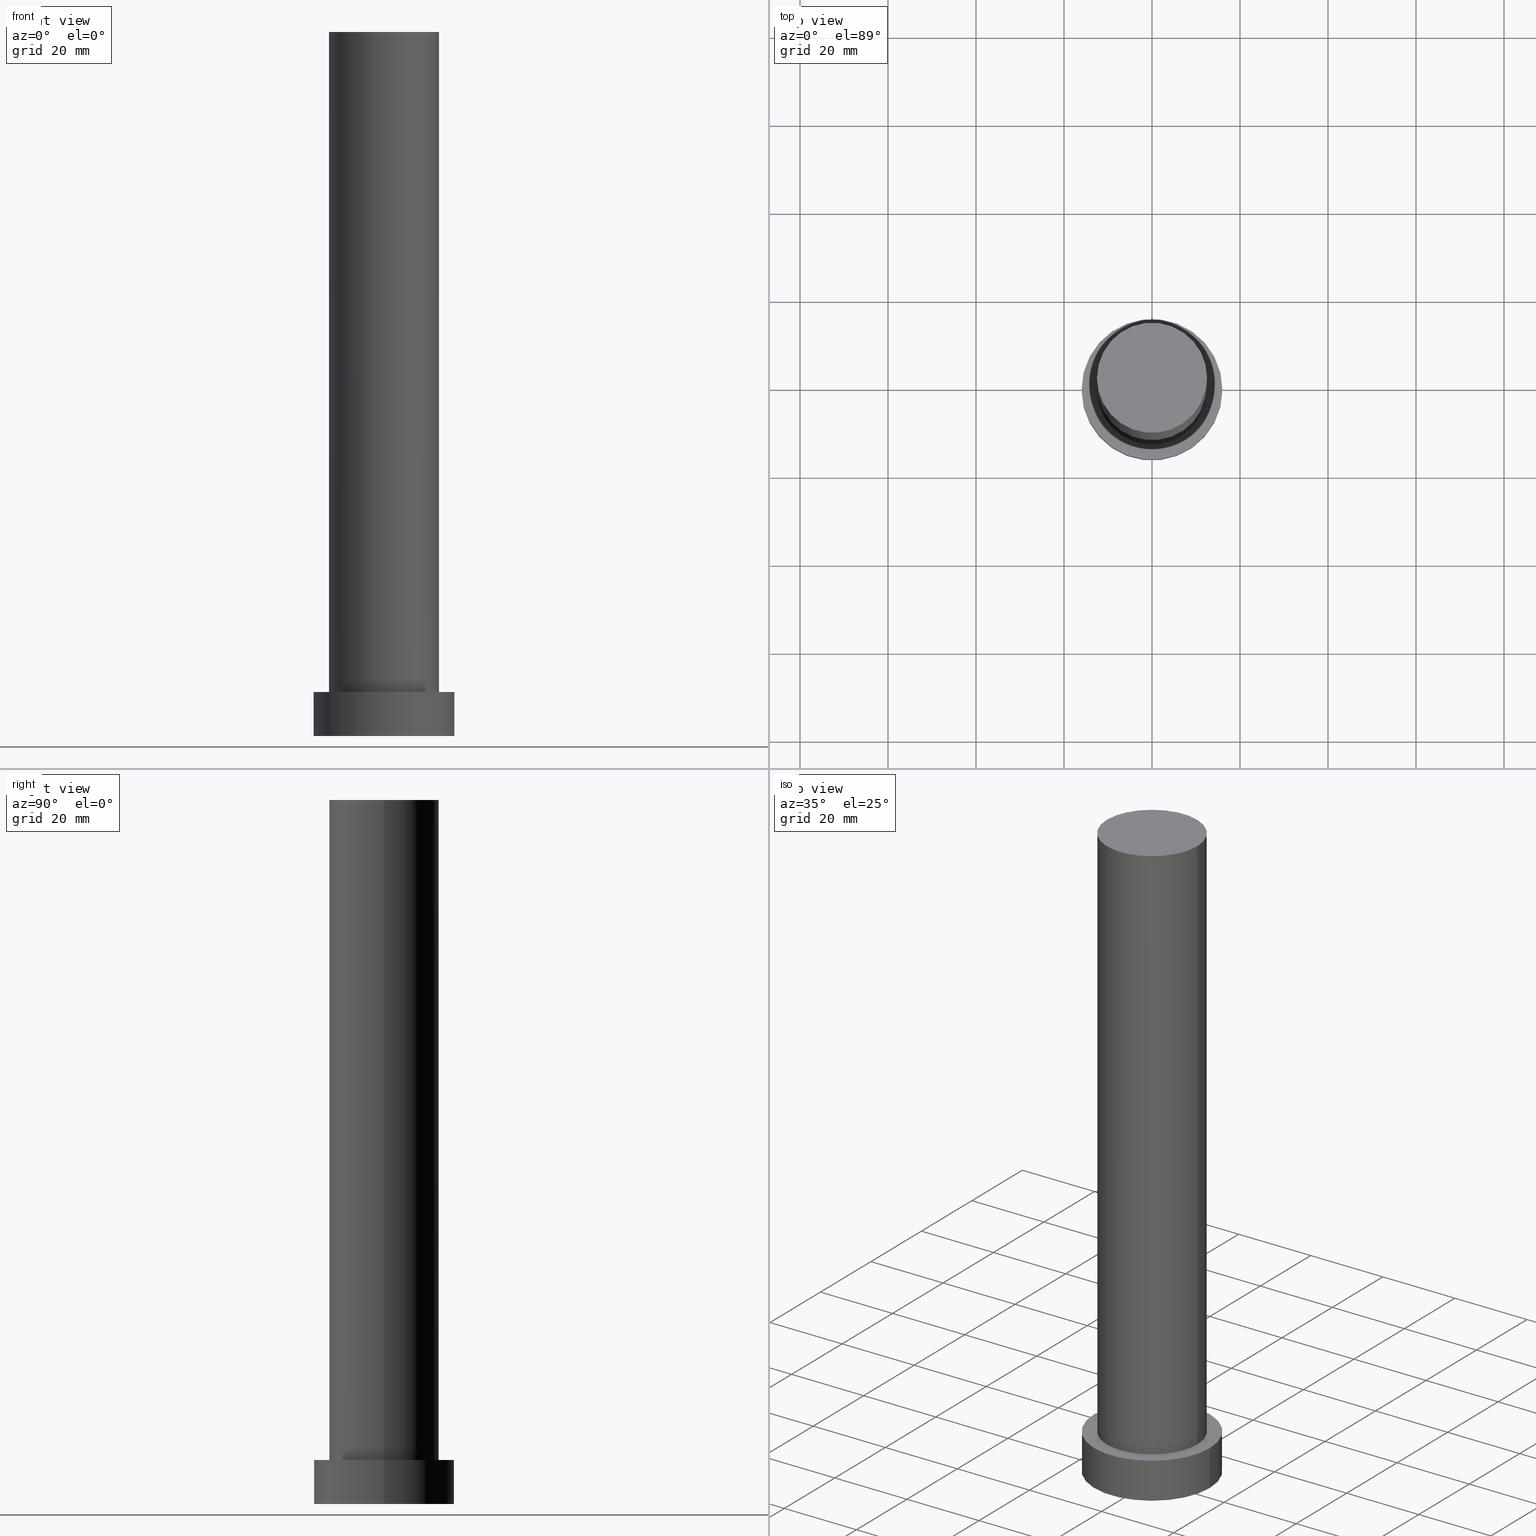
[diagram: canonical four-view strip — front | top / right | iso, engineering-drawing reading convention]
A machine part, canonical four-view strip (front | top / right | iso — engineering-drawing reading convention). The complete STEP part file that produces these views, byte-faithful:
ISO-10303-21;
HEADER;
FILE_DESCRIPTION (( 'STEP AP203' ),
    '1' );
FILE_NAME ('25d0.STEP',
    '2026-02-06T12:35:11',
    ( '' ),
    ( '' ),
    'SwSTEP 2.0',
    'SolidWorks 2019',
    '' );
FILE_SCHEMA (( 'CONFIG_CONTROL_DESIGN' ));
ENDSEC;

DATA;
#1 = APPROVAL_PERSON_ORGANIZATION ( #12, #62, #167 ) ;
#2 = DIRECTION ( 'NONE',  ( 1.000000000000000000, 0.000000000000000000, -0.000000000000000000 ) ) ;
#3 = LINE ( 'NONE', #46, #191 ) ;
#4 = AXIS2_PLACEMENT_3D ( 'NONE', #246, #28, #69 ) ;
#5 = FACE_OUTER_BOUND ( 'NONE', #105, .T. ) ;
#6 = CYLINDRICAL_SURFACE ( 'NONE', #98, 12.50000000000000000 ) ;
#7 = AXIS2_PLACEMENT_3D ( 'NONE', #66, #45, #203 ) ;
#8 = DIRECTION ( 'NONE',  ( 0.000000000000000000, 0.000000000000000000, 1.000000000000000000 ) ) ;
#9 = EDGE_LOOP ( 'NONE', ( #13, #34, #56, #166 ) ) ;
#10 = ADVANCED_FACE ( 'NONE', ( #111, #232 ), #95, .T. ) ;
#11 = ORIENTED_EDGE ( 'NONE', *, *, #53, .F. ) ;
#12 = PERSON_AND_ORGANIZATION ( #127, #145 ) ;
#13 = ORIENTED_EDGE ( 'NONE', *, *, #17, .F. ) ;
#14 = ORIENTED_EDGE ( 'NONE', *, *, #128, .T. ) ;
#15 = ORIENTED_EDGE ( 'NONE', *, *, #156, .T. ) ;
#16 = AXIS2_PLACEMENT_3D ( 'NONE', #201, #184, #139 ) ;
#17 = EDGE_CURVE ( 'NONE', #49, #212, #213, .T. ) ;
#18 = COORDINATED_UNIVERSAL_TIME_OFFSET ( 1, 0, .AHEAD. ) ;
#19 = PLANE ( 'NONE',  #160 ) ;
#20 = CIRCLE ( 'NONE', #250, 16.00000000000000000 ) ;
#21 = PERSON_AND_ORGANIZATION ( #127, #145 ) ;
#22 = ADVANCED_FACE ( 'NONE', ( #164 ), #80, .T. ) ;
#23 = AXIS2_PLACEMENT_3D ( 'NONE', #170, #79, #57 ) ;
#24 = CARTESIAN_POINT ( 'NONE',  ( -12.50000000000000000, 0.000000000000000000, 10.00000000000000000 ) ) ;
#25 = APPROVAL_STATUS ( 'not_yet_approved' ) ;
#26 = CARTESIAN_POINT ( 'NONE',  ( 16.00000000000000000, 1.959434878635765131E-15, 0.000000000000000000 ) ) ;
#27 = CARTESIAN_POINT ( 'NONE',  ( 0.000000000000000000, 0.000000000000000000, 10.00000000000000000 ) ) ;
#28 = DIRECTION ( 'NONE',  ( 0.000000000000000000, 0.000000000000000000, 1.000000000000000000 ) ) ;
#29 = PERSON_AND_ORGANIZATION ( #127, #145 ) ;
#30 = VERTEX_POINT ( 'NONE', #36 ) ;
#31 = LOCAL_TIME ( 13, 35, 11.00000000000000000, #103 ) ;
#32 = CC_DESIGN_APPROVAL ( #178, ( #43 ) ) ;
#33 = ORIENTED_EDGE ( 'NONE', *, *, #194, .F. ) ;
#34 = ORIENTED_EDGE ( 'NONE', *, *, #128, .F. ) ;
#35 = LOCAL_TIME ( 13, 35, 11.00000000000000000, #180 ) ;
#36 = CARTESIAN_POINT ( 'NONE',  ( -16.00000000000000000, 0.000000000000000000, 10.00000000000000000 ) ) ;
#37 = APPROVAL_ROLE ( '' ) ;
#38 = APPLICATION_CONTEXT ( 'configuration controlled 3d designs of mechanical parts and assemblies' ) ;
#39 = AXIS2_PLACEMENT_3D ( 'NONE', #84, #88, #159 ) ;
#40 = CIRCLE ( 'NONE', #187, 12.50000000000000000 ) ;
#41 = ADVANCED_FACE ( 'NONE', ( #236 ), #19, .T. ) ;
#42 = PERSON_AND_ORGANIZATION ( #127, #145 ) ;
#43 = SECURITY_CLASSIFICATION ( '', '', #255 ) ;
#44 = DIRECTION ( 'NONE',  ( 0.000000000000000000, 0.000000000000000000, 1.000000000000000000 ) ) ;
#45 = DIRECTION ( 'NONE',  ( 0.000000000000000000, 0.000000000000000000, 1.000000000000000000 ) ) ;
#46 = CARTESIAN_POINT ( 'NONE',  ( 16.00000000000000000, 1.959434878635765131E-15, 10.00000000000000000 ) ) ;
#47 = MANIFOLD_SOLID_BREP ( 'P�idat vysunut�m3', #186 ) ;
#48 = DIRECTION ( 'NONE',  ( -0.000000000000000000, -0.000000000000000000, -1.000000000000000000 ) ) ;
#49 = VERTEX_POINT ( 'NONE', #177 ) ;
#50 = APPLICATION_PROTOCOL_DEFINITION ( 'international standard', 'config_control_design', 1994, #242 ) ;
#51 = PERSON_AND_ORGANIZATION_ROLE ( 'design_owner' ) ;
#52 = ORIENTED_EDGE ( 'NONE', *, *, #112, .F. ) ;
#53 = EDGE_CURVE ( 'NONE', #77, #130, #195, .T. ) ;
#54 = AXIS2_PLACEMENT_3D ( 'NONE', #237, #174, #59 ) ;
#55 = AXIS2_PLACEMENT_3D ( 'NONE', #27, #64, #71 ) ;
#56 = ORIENTED_EDGE ( 'NONE', *, *, #53, .T. ) ;
#57 = DIRECTION ( 'NONE',  ( 1.000000000000000000, 0.000000000000000000, -0.000000000000000000 ) ) ;
#58 = ADVANCED_FACE ( 'NONE', ( #96 ), #216, .T. ) ;
#59 = DIRECTION ( 'NONE',  ( -1.000000000000000000, 0.000000000000000000, 0.000000000000000000 ) ) ;
#60 = DIRECTION ( 'NONE',  ( 1.000000000000000000, 0.000000000000000000, -0.000000000000000000 ) ) ;
#61 = DATE_TIME_ROLE ( 'classification_date' ) ;
#62 = APPROVAL ( #25, 'NEUR�EN�' ) ;
#63 = CIRCLE ( 'NONE', #4, 12.50000000000000000 ) ;
#64 = DIRECTION ( 'NONE',  ( 0.000000000000000000, 0.000000000000000000, 1.000000000000000000 ) ) ;
#65 = CC_DESIGN_APPROVAL ( #62, ( #165 ) ) ;
#66 = CARTESIAN_POINT ( 'NONE',  ( 0.000000000000000000, 0.000000000000000000, 10.00000000000000000 ) ) ;
#67 = DATE_AND_TIME ( #241, #31 ) ;
#68 = CARTESIAN_POINT ( 'NONE',  ( -16.00000000000000000, 0.000000000000000000, 0.000000000000000000 ) ) ;
#69 = DIRECTION ( 'NONE',  ( 1.000000000000000000, 0.000000000000000000, 0.000000000000000000 ) ) ;
#70 = UNCERTAINTY_MEASURE_WITH_UNIT (LENGTH_MEASURE( 1.000000000000000082E-05 ), #245, 'distance_accuracy_value', 'NONE');
#71 = DIRECTION ( 'NONE',  ( 1.000000000000000000, 0.000000000000000000, 0.000000000000000000 ) ) ;
#72 = PRODUCT_RELATED_PRODUCT_CATEGORY ( 'detail', '', ( #76 ) ) ;
#73 = ORIENTED_EDGE ( 'NONE', *, *, #233, .T. ) ;
#74 =( NAMED_UNIT ( * ) PLANE_ANGLE_UNIT ( ) SI_UNIT ( $, .RADIAN. ) );
#75 = ORIENTED_EDGE ( 'NONE', *, *, #251, .T. ) ;
#76 = PRODUCT ( '25d0', '25d0', '', ( #226 ) ) ;
#77 = VERTEX_POINT ( 'NONE', #220 ) ;
#78 = PRODUCT_DEFINITION_FORMATION_WITH_SPECIFIED_SOURCE ( 'LIBOVOLN�', '', #76, .NOT_KNOWN. ) ;
#79 = DIRECTION ( 'NONE',  ( 0.000000000000000000, 0.000000000000000000, 1.000000000000000000 ) ) ;
#80 = CYLINDRICAL_SURFACE ( 'NONE', #54, 16.00000000000000000 ) ;
#81 = APPROVAL_PERSON_ORGANIZATION ( #97, #178, #197 ) ;
#82 = COORDINATED_UNIVERSAL_TIME_OFFSET ( 1, 0, .AHEAD. ) ;
#83 = CARTESIAN_POINT ( 'NONE',  ( 16.00000000000000000, 1.959434878635765131E-15, 10.00000000000000000 ) ) ;
#84 = CARTESIAN_POINT ( 'NONE',  ( 0.000000000000000000, 0.000000000000000000, 0.000000000000000000 ) ) ;
#85 = CARTESIAN_POINT ( 'NONE',  ( 0.000000000000000000, 0.000000000000000000, 10.00000000000000000 ) ) ;
#86 = AXIS2_PLACEMENT_3D ( 'NONE', #243, #204, #222 ) ;
#87 = ADVANCED_FACE ( 'NONE', ( #182 ), #121, .T. ) ;
#88 = DIRECTION ( 'NONE',  ( 0.000000000000000000, 0.000000000000000000, 1.000000000000000000 ) ) ;
#89 = DIRECTION ( 'NONE',  ( -0.000000000000000000, -0.000000000000000000, -1.000000000000000000 ) ) ;
#90 = DIRECTION ( 'NONE',  ( -0.000000000000000000, -0.000000000000000000, -1.000000000000000000 ) ) ;
#91 = ORIENTED_EDGE ( 'NONE', *, *, #172, .T. ) ;
#92 = DIRECTION ( 'NONE',  ( 1.000000000000000000, 0.000000000000000000, 0.000000000000000000 ) ) ;
#93 = VERTEX_POINT ( 'NONE', #26 ) ;
#94 = EDGE_LOOP ( 'NONE', ( #247, #146, #193, #109 ) ) ;
#95 = PLANE ( 'NONE',  #23 ) ;
#96 = FACE_OUTER_BOUND ( 'NONE', #228, .T. ) ;
#97 = PERSON_AND_ORGANIZATION ( #127, #145 ) ;
#98 = AXIS2_PLACEMENT_3D ( 'NONE', #188, #90, #149 ) ;
#99 = VECTOR ( 'NONE', #89, 1000.000000000000000 ) ;
#100 = APPROVAL_STATUS ( 'not_yet_approved' ) ;
#101 = DIRECTION ( 'NONE',  ( -0.000000000000000000, -0.000000000000000000, -1.000000000000000000 ) ) ;
#102 = DIRECTION ( 'NONE',  ( 1.000000000000000000, 0.000000000000000000, 0.000000000000000000 ) ) ;
#103 = COORDINATED_UNIVERSAL_TIME_OFFSET ( 1, 0, .AHEAD. ) ;
#104 =( NAMED_UNIT ( * ) SI_UNIT ( $, .STERADIAN. ) SOLID_ANGLE_UNIT ( ) );
#105 = EDGE_LOOP ( 'NONE', ( #131, #33 ) ) ;
#106 = DIRECTION ( 'NONE',  ( 0.000000000000000000, 0.000000000000000000, 1.000000000000000000 ) ) ;
#107 = ADVANCED_FACE ( 'NONE', ( #5 ), #141, .F. ) ;
#108 = ORIENTED_EDGE ( 'NONE', *, *, #205, .F. ) ;
#109 = ORIENTED_EDGE ( 'NONE', *, *, #172, .F. ) ;
#110 = APPROVAL_STATUS ( 'not_yet_approved' ) ;
#111 = FACE_BOUND ( 'NONE', #192, .T. ) ;
#112 = EDGE_CURVE ( 'NONE', #30, #148, #198, .T. ) ;
#113 = CARTESIAN_POINT ( 'NONE',  ( 12.50000000000000000, 1.530808498934191521E-15, 160.0000000000000000 ) ) ;
#114 = APPROVAL_DATE_TIME ( #153, #168 ) ;
#115 = PERSON_AND_ORGANIZATION ( #127, #145 ) ;
#116 = CIRCLE ( 'NONE', #7, 16.00000000000000000 ) ;
#117 = PERSON_AND_ORGANIZATION_ROLE ( 'design_supplier' ) ;
#118 = CC_DESIGN_DATE_AND_TIME_ASSIGNMENT ( #199, #61, ( #43 ) ) ;
#119 = CALENDAR_DATE ( 2026, 6, 2 ) ;
#120 = DIRECTION ( 'NONE',  ( 1.000000000000000000, 0.000000000000000000, 0.000000000000000000 ) ) ;
#121 = CYLINDRICAL_SURFACE ( 'NONE', #16, 16.00000000000000000 ) ;
#122 = PERSON_AND_ORGANIZATION ( #127, #145 ) ;
#123 = DIRECTION ( 'NONE',  ( 0.000000000000000000, 0.000000000000000000, 1.000000000000000000 ) ) ;
#124 = LOCAL_TIME ( 13, 35, 11.00000000000000000, #82 ) ;
#125 = AXIS2_PLACEMENT_3D ( 'NONE', #239, #44, #2 ) ;
#126 = PERSON_AND_ORGANIZATION ( #127, #145 ) ;
#127 = PERSON ( 'NEUR�EN�', 'NEUR�EN�', 'NEUR�EN�', ('NEUR�EN�'), ('NEUR�EN�'), ('NEUR�EN�') ) ;
#128 = EDGE_CURVE ( 'NONE', #77, #49, #230, .T. ) ;
#129 = DATE_AND_TIME ( #206, #253 ) ;
#130 = VERTEX_POINT ( 'NONE', #24 ) ;
#131 = ORIENTED_EDGE ( 'NONE', *, *, #251, .F. ) ;
#132 = CIRCLE ( 'NONE', #55, 12.50000000000000000 ) ;
#133 = ORIENTED_EDGE ( 'NONE', *, *, #112, .T. ) ;
#134 = CC_DESIGN_PERSON_AND_ORGANIZATION_ASSIGNMENT ( #126, #51, ( #76 ) ) ;
#135 = DIRECTION ( 'NONE',  ( -0.000000000000000000, -0.000000000000000000, -1.000000000000000000 ) ) ;
#136 = APPROVAL_PERSON_ORGANIZATION ( #122, #168, #37 ) ;
#137 = VECTOR ( 'NONE', #135, 1000.000000000000000 ) ;
#138 = EDGE_CURVE ( 'NONE', #130, #212, #40, .T. ) ;
#139 = DIRECTION ( 'NONE',  ( -1.000000000000000000, 0.000000000000000000, 0.000000000000000000 ) ) ;
#140 = LOCAL_TIME ( 13, 35, 11.00000000000000000, #18 ) ;
#141 = PLANE ( 'NONE',  #125 ) ;
#142 = PERSON_AND_ORGANIZATION_ROLE ( 'creator' ) ;
#143 = LINE ( 'NONE', #224, #152 ) ;
#144 = DIRECTION ( 'NONE',  ( 1.000000000000000000, 0.000000000000000000, 0.000000000000000000 ) ) ;
#145 = ORGANIZATION ( 'NEUR�EN�', 'NEUR�EN�', '' ) ;
#146 = ORIENTED_EDGE ( 'NONE', *, *, #205, .T. ) ;
#147 = FACE_OUTER_BOUND ( 'NONE', #9, .T. ) ;
#148 = VERTEX_POINT ( 'NONE', #83 ) ;
#149 = DIRECTION ( 'NONE',  ( -1.000000000000000000, 0.000000000000000000, 0.000000000000000000 ) ) ;
#150 = ORIENTED_EDGE ( 'NONE', *, *, #233, .F. ) ;
#151 = ORIENTED_EDGE ( 'NONE', *, *, #189, .F. ) ;
#152 = VECTOR ( 'NONE', #48, 1000.000000000000000 ) ;
#153 = DATE_AND_TIME ( #219, #140 ) ;
#154 = CARTESIAN_POINT ( 'NONE',  ( 0.000000000000000000, 0.000000000000000000, 160.0000000000000000 ) ) ;
#155 = PERSON_AND_ORGANIZATION_ROLE ( 'classification_officer' ) ;
#156 = EDGE_CURVE ( 'NONE', #148, #30, #116, .T. ) ;
#157 = CALENDAR_DATE ( 2026, 6, 2 ) ;
#158 = DIRECTION ( 'NONE',  ( 0.000000000000000000, 0.000000000000000000, 1.000000000000000000 ) ) ;
#159 = DIRECTION ( 'NONE',  ( 1.000000000000000000, 0.000000000000000000, 0.000000000000000000 ) ) ;
#160 = AXIS2_PLACEMENT_3D ( 'NONE', #154, #171, #60 ) ;
#161 = AXIS2_PLACEMENT_3D ( 'NONE', #85, #123, #120 ) ;
#162 = DIRECTION ( 'NONE',  ( -1.000000000000000000, 0.000000000000000000, 0.000000000000000000 ) ) ;
#163 = APPLICATION_PROTOCOL_DEFINITION ( 'international standard', 'config_control_design', 1994, #38 ) ;
#164 = FACE_OUTER_BOUND ( 'NONE', #94, .T. ) ;
#165 = PRODUCT_DEFINITION ( 'NEZN�M�', '', #78, #234 ) ;
#166 = ORIENTED_EDGE ( 'NONE', *, *, #138, .T. ) ;
#167 = APPROVAL_ROLE ( '' ) ;
#168 = APPROVAL ( #110, 'NEUR�EN�' ) ;
#169 = VERTEX_POINT ( 'NONE', #68 ) ;
#170 = CARTESIAN_POINT ( 'NONE',  ( 0.000000000000000000, 0.000000000000000000, 10.00000000000000000 ) ) ;
#171 = DIRECTION ( 'NONE',  ( 0.000000000000000000, 0.000000000000000000, 1.000000000000000000 ) ) ;
#172 = EDGE_CURVE ( 'NONE', #30, #169, #143, .T. ) ;
#173 = CIRCLE ( 'NONE', #214, 16.00000000000000000 ) ;
#174 = DIRECTION ( 'NONE',  ( -0.000000000000000000, -0.000000000000000000, -1.000000000000000000 ) ) ;
#175 = CARTESIAN_POINT ( 'NONE',  ( -12.50000000000000000, 0.000000000000000000, 160.0000000000000000 ) ) ;
#176 = APPROVAL_DATE_TIME ( #196, #178 ) ;
#177 = CARTESIAN_POINT ( 'NONE',  ( 12.50000000000000000, 1.530808498934191521E-15, 160.0000000000000000 ) ) ;
#178 = APPROVAL ( #100, 'NEUR�EN�' ) ;
#179 = PERSON_AND_ORGANIZATION_ROLE ( 'creator' ) ;
#180 = COORDINATED_UNIVERSAL_TIME_OFFSET ( 1, 0, .AHEAD. ) ;
#181 = CC_DESIGN_PERSON_AND_ORGANIZATION_ASSIGNMENT ( #29, #142, ( #165 ) ) ;
#182 = FACE_OUTER_BOUND ( 'NONE', #229, .T. ) ;
#183 = DIRECTION ( 'NONE',  ( -0.000000000000000000, -0.000000000000000000, -1.000000000000000000 ) ) ;
#184 = DIRECTION ( 'NONE',  ( -0.000000000000000000, -0.000000000000000000, -1.000000000000000000 ) ) ;
#185 = CARTESIAN_POINT ( 'NONE',  ( 12.50000000000000000, 1.530808498934191521E-15, 10.00000000000000000 ) ) ;
#186 = CLOSED_SHELL ( 'NONE', ( #58, #22, #87, #10, #107, #215, #41 ) ) ;
#187 = AXIS2_PLACEMENT_3D ( 'NONE', #240, #158, #102 ) ;
#188 = CARTESIAN_POINT ( 'NONE',  ( 0.000000000000000000, 0.000000000000000000, 160.0000000000000000 ) ) ;
#189 = EDGE_CURVE ( 'NONE', #212, #130, #132, .T. ) ;
#190 = CARTESIAN_POINT ( 'NONE',  ( 0.000000000000000000, 0.000000000000000000, 0.000000000000000000 ) ) ;
#191 = VECTOR ( 'NONE', #183, 1000.000000000000000 ) ;
#192 = EDGE_LOOP ( 'NONE', ( #211, #151 ) ) ;
#193 = ORIENTED_EDGE ( 'NONE', *, *, #194, .T. ) ;
#194 = EDGE_CURVE ( 'NONE', #93, #169, #20, .T. ) ;
#195 = LINE ( 'NONE', #175, #137 ) ;
#196 = DATE_AND_TIME ( #157, #124 ) ;
#197 = APPROVAL_ROLE ( '' ) ;
#198 = CIRCLE ( 'NONE', #161, 16.00000000000000000 ) ;
#199 = DATE_AND_TIME ( #119, #35 ) ;
#200 = SHAPE_DEFINITION_REPRESENTATION ( #207, #235 ) ;
#201 = CARTESIAN_POINT ( 'NONE',  ( 0.000000000000000000, 0.000000000000000000, 10.00000000000000000 ) ) ;
#202 = COORDINATED_UNIVERSAL_TIME_OFFSET ( 1, 0, .AHEAD. ) ;
#203 = DIRECTION ( 'NONE',  ( 1.000000000000000000, 0.000000000000000000, 0.000000000000000000 ) ) ;
#204 = DIRECTION ( 'NONE',  ( 0.000000000000000000, 0.000000000000000000, 1.000000000000000000 ) ) ;
#205 = EDGE_CURVE ( 'NONE', #148, #93, #3, .T. ) ;
#206 = CALENDAR_DATE ( 2026, 6, 2 ) ;
#207 = PRODUCT_DEFINITION_SHAPE ( 'NONE', 'NONE',  #165 ) ;
#208 = APPROVAL_DATE_TIME ( #129, #62 ) ;
#209 = EDGE_LOOP ( 'NONE', ( #14, #73 ) ) ;
#210 = CC_DESIGN_APPROVAL ( #168, ( #78 ) ) ;
#211 = ORIENTED_EDGE ( 'NONE', *, *, #138, .F. ) ;
#212 = VERTEX_POINT ( 'NONE', #185 ) ;
#213 = LINE ( 'NONE', #113, #99 ) ;
#214 = AXIS2_PLACEMENT_3D ( 'NONE', #190, #106, #144 ) ;
#215 = ADVANCED_FACE ( 'NONE', ( #147 ), #6, .T. ) ;
#216 = CYLINDRICAL_SURFACE ( 'NONE', #218, 12.50000000000000000 ) ;
#217 = CC_DESIGN_PERSON_AND_ORGANIZATION_ASSIGNMENT ( #115, #117, ( #78 ) ) ;
#218 = AXIS2_PLACEMENT_3D ( 'NONE', #254, #101, #162 ) ;
#219 = CALENDAR_DATE ( 2026, 6, 2 ) ;
#220 = CARTESIAN_POINT ( 'NONE',  ( -12.50000000000000000, 0.000000000000000000, 160.0000000000000000 ) ) ;
#221 = CC_DESIGN_SECURITY_CLASSIFICATION ( #43, ( #78 ) ) ;
#222 = DIRECTION ( 'NONE',  ( 1.000000000000000000, 0.000000000000000000, 0.000000000000000000 ) ) ;
#223 = DATE_TIME_ROLE ( 'creation_date' ) ;
#224 = CARTESIAN_POINT ( 'NONE',  ( -16.00000000000000000, 0.000000000000000000, 10.00000000000000000 ) ) ;
#225 = EDGE_LOOP ( 'NONE', ( #133, #15 ) ) ;
#226 = MECHANICAL_CONTEXT ( 'NONE', #38, 'mechanical' ) ;
#227 = CC_DESIGN_DATE_AND_TIME_ASSIGNMENT ( #67, #223, ( #165 ) ) ;
#228 = EDGE_LOOP ( 'NONE', ( #150, #249, #231, #11 ) ) ;
#229 = EDGE_LOOP ( 'NONE', ( #108, #52, #91, #75 ) ) ;
#230 = CIRCLE ( 'NONE', #86, 12.50000000000000000 ) ;
#231 = ORIENTED_EDGE ( 'NONE', *, *, #189, .T. ) ;
#232 = FACE_OUTER_BOUND ( 'NONE', #225, .T. ) ;
#233 = EDGE_CURVE ( 'NONE', #49, #77, #63, .T. ) ;
#234 = DESIGN_CONTEXT ( 'detailed design', #242, 'design' ) ;
#235 = ADVANCED_BREP_SHAPE_REPRESENTATION ( '25d0', ( #47, #39 ), #238 ) ;
#236 = FACE_OUTER_BOUND ( 'NONE', #209, .T. ) ;
#237 = CARTESIAN_POINT ( 'NONE',  ( 0.000000000000000000, 0.000000000000000000, 10.00000000000000000 ) ) ;
#238 =( GEOMETRIC_REPRESENTATION_CONTEXT ( 3 ) GLOBAL_UNCERTAINTY_ASSIGNED_CONTEXT ( ( #70 ) ) GLOBAL_UNIT_ASSIGNED_CONTEXT ( ( #245, #74, #104 ) ) REPRESENTATION_CONTEXT ( 'NONE', 'WORKASPACE' ) );
#239 = CARTESIAN_POINT ( 'NONE',  ( 0.000000000000000000, 0.000000000000000000, 0.000000000000000000 ) ) ;
#240 = CARTESIAN_POINT ( 'NONE',  ( 0.000000000000000000, 0.000000000000000000, 10.00000000000000000 ) ) ;
#241 = CALENDAR_DATE ( 2026, 6, 2 ) ;
#242 = APPLICATION_CONTEXT ( 'configuration controlled 3d designs of mechanical parts and assemblies' ) ;
#243 = CARTESIAN_POINT ( 'NONE',  ( 0.000000000000000000, 0.000000000000000000, 160.0000000000000000 ) ) ;
#244 = CC_DESIGN_PERSON_AND_ORGANIZATION_ASSIGNMENT ( #42, #155, ( #43 ) ) ;
#245 =( LENGTH_UNIT ( ) NAMED_UNIT ( * ) SI_UNIT ( .MILLI., .METRE. ) );
#246 = CARTESIAN_POINT ( 'NONE',  ( 0.000000000000000000, 0.000000000000000000, 160.0000000000000000 ) ) ;
#247 = ORIENTED_EDGE ( 'NONE', *, *, #156, .F. ) ;
#248 = CARTESIAN_POINT ( 'NONE',  ( 0.000000000000000000, 0.000000000000000000, 0.000000000000000000 ) ) ;
#249 = ORIENTED_EDGE ( 'NONE', *, *, #17, .T. ) ;
#250 = AXIS2_PLACEMENT_3D ( 'NONE', #248, #8, #92 ) ;
#251 = EDGE_CURVE ( 'NONE', #169, #93, #173, .T. ) ;
#252 = CC_DESIGN_PERSON_AND_ORGANIZATION_ASSIGNMENT ( #21, #179, ( #78 ) ) ;
#253 = LOCAL_TIME ( 13, 35, 11.00000000000000000, #202 ) ;
#254 = CARTESIAN_POINT ( 'NONE',  ( 0.000000000000000000, 0.000000000000000000, 160.0000000000000000 ) ) ;
#255 = SECURITY_CLASSIFICATION_LEVEL ( 'unclassified' ) ;
ENDSEC;
END-ISO-10303-21;
